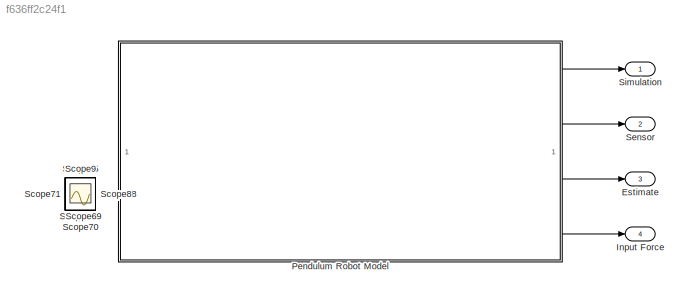
MODEL slx_f636ff2c24f1
KIND model
CONFIG AbsTol = auto
CONFIG EnableMultiTasking = on
CONFIG FixedStep = Ts
CONFIG MaxStep = auto
CONFIG MinStep = auto
CONFIG RelTol = 1e-3
CONFIG SampleTimeConstraint = Unconstrained
CONFIG SolverName = FixedStepDiscrete
CONFIG StartTime = 0.0
CONFIG StopTime = 30
BLOCK [Outport] Estimate
  Port = 3
BLOCK [Outport] Input Force
  Port = 4
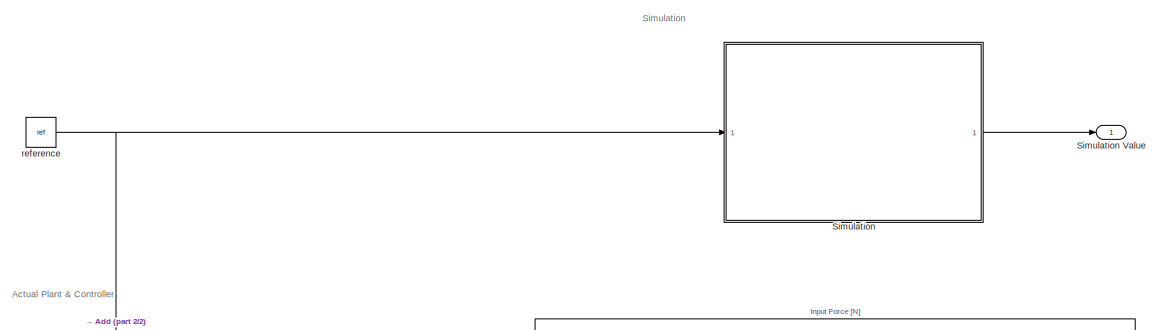
[diagram: Pendulum Robot Model - part 1/2, full width, top band]
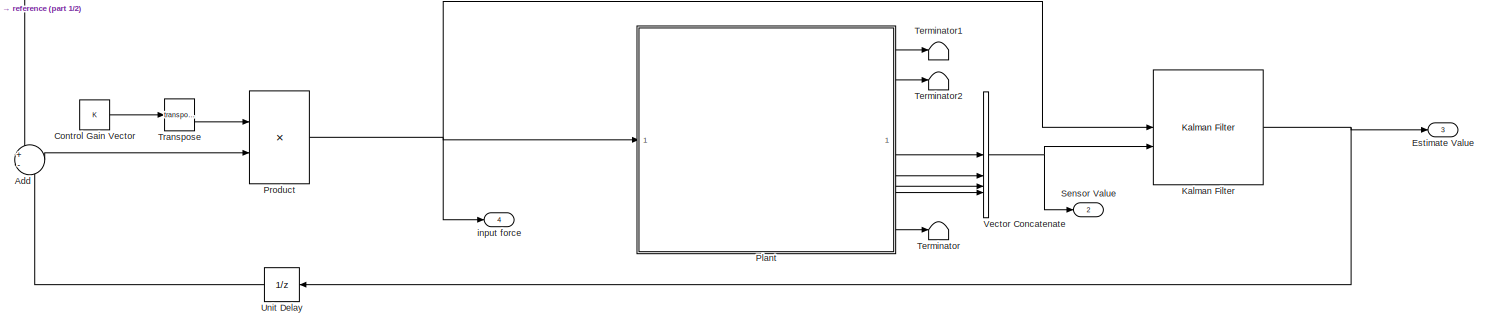
[diagram: Pendulum Robot Model - part 2/2, full width, bottom band]
BLOCK [SubSystem] Pendulum Robot Model
  InitFcn = [Ts, T_filt, r, ref, x0, A, B, C, D, K, P0, Q, R, N] = initializeRobot()
BLOCK [Sum] Pendulum Robot Model/Add
  Inputs = +-
BLOCK [Constant] Pendulum Robot Model/Control Gain Vector
  Value = K
BLOCK [Outport] Pendulum Robot Model/Estimate Value
  Port = 3
BLOCK [Reference] Pendulum Robot Model/Kalman Filter  REF=ctrlSharedLib/Kalman Filter
  LibrarySourceBlock = cstblocks/State Estimation/Kalman Filter
  SourceBlock = ctrlSharedLib/Kalman Filter
  SourceType = ctrlKalmanFilter
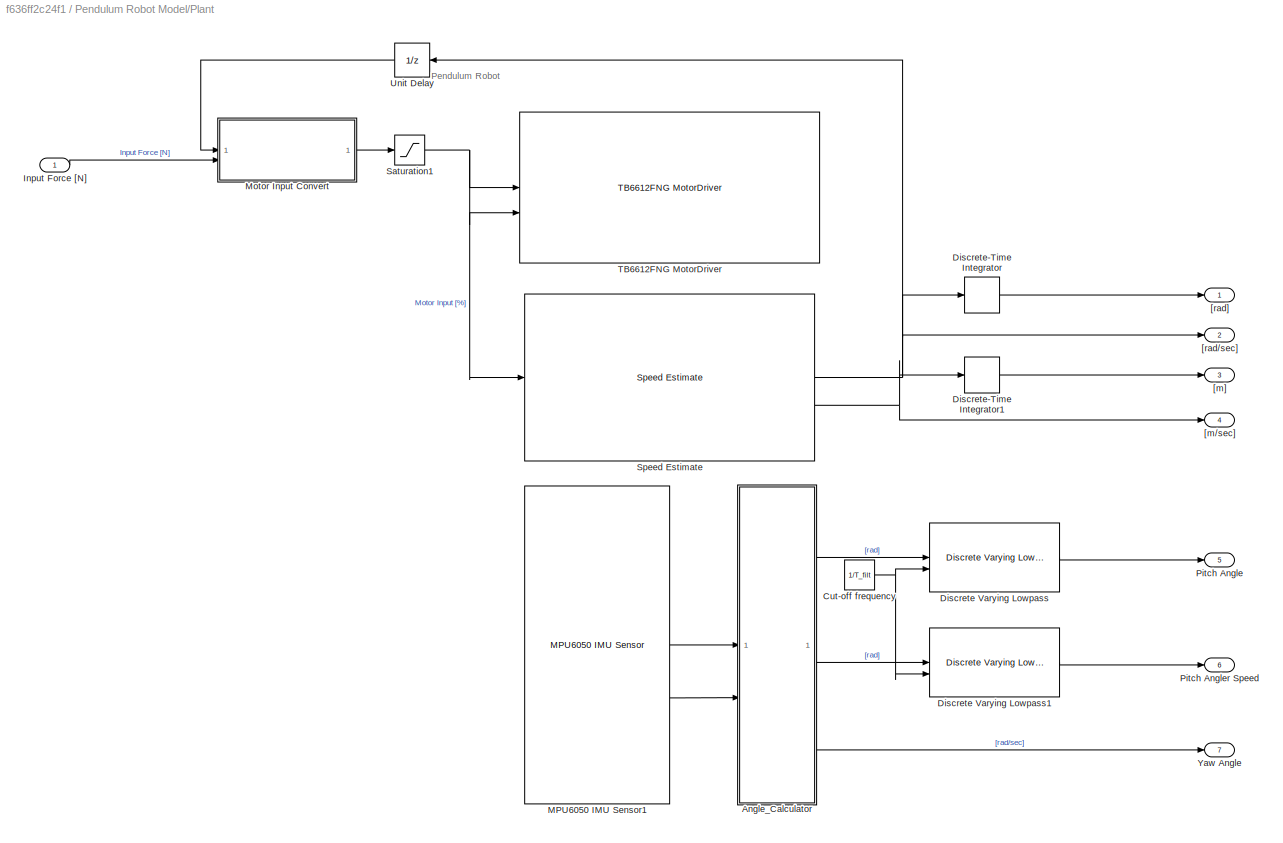
BLOCK [SubSystem] Pendulum Robot Model/Plant
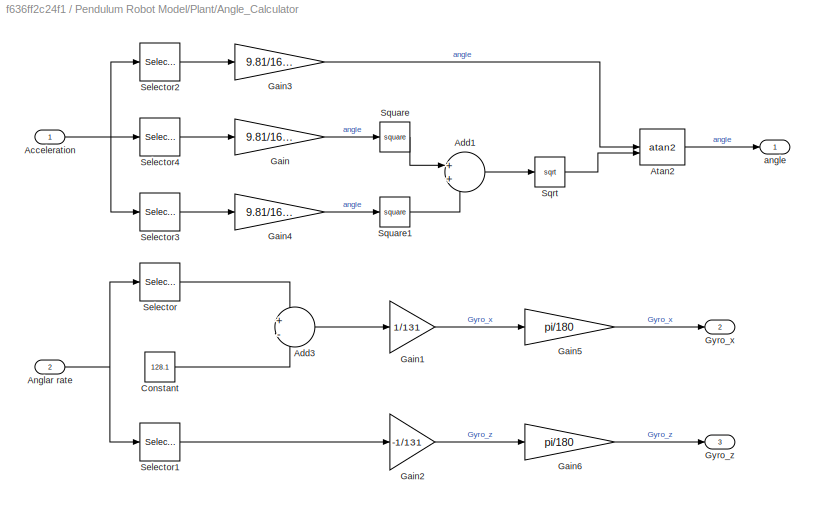
BLOCK [SubSystem] Pendulum Robot Model/Plant/Angle_Calculator
BLOCK [Inport] Pendulum Robot Model/Plant/Angle_Calculator/Acceleration
BLOCK [Sum] Pendulum Robot Model/Plant/Angle_Calculator/Add1
BLOCK [Sum] Pendulum Robot Model/Plant/Angle_Calculator/Add3
  Inputs = +-
BLOCK [Inport] Pendulum Robot Model/Plant/Angle_Calculator/Anglar rate
  Port = 2
BLOCK [Trigonometry] Pendulum Robot Model/Plant/Angle_Calculator/Atan2
  Operator = atan2
BLOCK [Constant] Pendulum Robot Model/Plant/Angle_Calculator/Constant
  Value = 128.1
BLOCK [Gain] Pendulum Robot Model/Plant/Angle_Calculator/Gain
  Gain = 9.81/16384
BLOCK [Gain] Pendulum Robot Model/Plant/Angle_Calculator/Gain1
  Gain = 1/131
BLOCK [Gain] Pendulum Robot Model/Plant/Angle_Calculator/Gain2
  Gain = -1/131
BLOCK [Gain] Pendulum Robot Model/Plant/Angle_Calculator/Gain3
  Gain = 9.81/16384
BLOCK [Gain] Pendulum Robot Model/Plant/Angle_Calculator/Gain4
  Gain = 9.81/16384
BLOCK [Gain] Pendulum Robot Model/Plant/Angle_Calculator/Gain5
  Gain = pi/180
BLOCK [Gain] Pendulum Robot Model/Plant/Angle_Calculator/Gain6
  Gain = pi/180
BLOCK [Outport] Pendulum Robot Model/Plant/Angle_Calculator/Gyro_x
  Port = 2
BLOCK [Outport] Pendulum Robot Model/Plant/Angle_Calculator/Gyro_z
  Port = 3
BLOCK [Selector] Pendulum Robot Model/Plant/Angle_Calculator/Selector
  IndexOptions = Index vector (dialog)
  Indices = [1]
  InputPortWidth = 3
  OutputSizes = 1
BLOCK [Selector] Pendulum Robot Model/Plant/Angle_Calculator/Selector1
  IndexOptions = Index vector (dialog)
  Indices = [3]
  InputPortWidth = 3
  OutputSizes = 1
BLOCK [Selector] Pendulum Robot Model/Plant/Angle_Calculator/Selector2
  IndexOptions = Index vector (dialog)
  Indices = [2]
  InputPortWidth = 3
  OutputSizes = 1
BLOCK [Selector] Pendulum Robot Model/Plant/Angle_Calculator/Selector3
  IndexOptions = Index vector (dialog)
  Indices = [3]
  InputPortWidth = 3
  OutputSizes = 1
BLOCK [Selector] Pendulum Robot Model/Plant/Angle_Calculator/Selector4
  IndexOptions = Index vector (dialog)
  Indices = [1]
  InputPortWidth = 3
  OutputSizes = 1
BLOCK [Sqrt] Pendulum Robot Model/Plant/Angle_Calculator/Sqrt
BLOCK [Math] Pendulum Robot Model/Plant/Angle_Calculator/Square
  Operator = square
BLOCK [Math] Pendulum Robot Model/Plant/Angle_Calculator/Square1
  Operator = square
BLOCK [Outport] Pendulum Robot Model/Plant/Angle_Calculator/angle
BLOCK [Constant] Pendulum Robot Model/Plant/Cut-off frequency
  Value = 1/T_filt
BLOCK [Reference] Pendulum Robot Model/Plant/Discrete Varying Lowpass  REF=cstblocks/Linear Parameter Varying/Discrete Varying Lowpass
  SourceBlock = cstblocks/Linear Parameter Varying/Discrete Varying Lowpass
  SourceType = Discrete Varying Lowpass
BLOCK [Reference] Pendulum Robot Model/Plant/Discrete Varying Lowpass1  REF=cstblocks/Linear Parameter Varying/Discrete Varying Lowpass
  SourceBlock = cstblocks/Linear Parameter Varying/Discrete Varying Lowpass
  SourceType = Discrete Varying Lowpass
BLOCK [DiscreteIntegrator] Pendulum Robot Model/Plant/Discrete-Time Integrator
  ICPrevOutput = DiscIntNeverNeededParam
  ICPrevScaledInput = DiscIntNeverNeededParam
  InitialConditionSetting = Auto
  SampleTime = -1
BLOCK [DiscreteIntegrator] Pendulum Robot Model/Plant/Discrete-Time Integrator1
  ICPrevOutput = DiscIntNeverNeededParam
  ICPrevScaledInput = DiscIntNeverNeededParam
  InitialConditionSetting = Auto
  SampleTime = -1
BLOCK [Inport] Pendulum Robot Model/Plant/Input Force [N]
BLOCK [Reference] Pendulum Robot Model/Plant/MPU6050 IMU Sensor1  REF=arduinosensorlib/MPU6050 IMU Sensor
  SourceBlock = arduinosensorlib/MPU6050 IMU Sensor
  SourceType = MPU6050
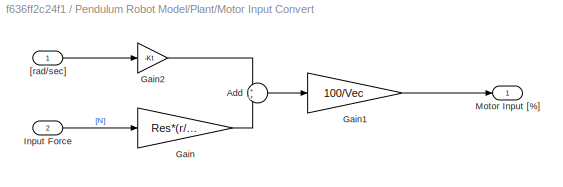
BLOCK [SubSystem] Pendulum Robot Model/Plant/Motor Input Convert
BLOCK [Sum] Pendulum Robot Model/Plant/Motor Input Convert/Add
BLOCK [Gain] Pendulum Robot Model/Plant/Motor Input Convert/Gain
  Gain = Res*(r/Kt)
BLOCK [Gain] Pendulum Robot Model/Plant/Motor Input Convert/Gain1
  Gain = 100/Vec
BLOCK [Gain] Pendulum Robot Model/Plant/Motor Input Convert/Gain2
  Gain = -Kt
BLOCK [Inport] Pendulum Robot Model/Plant/Motor Input Convert/Input Force
  Port = 2
BLOCK [Outport] Pendulum Robot Model/Plant/Motor Input Convert/Motor Input [%]
BLOCK [Inport] Pendulum Robot Model/Plant/Motor Input Convert/[rad//sec]
BLOCK [Outport] Pendulum Robot Model/Plant/Pitch Angle
  Port = 5
BLOCK [Outport] Pendulum Robot Model/Plant/Pitch Angler Speed
  Port = 6
BLOCK [Saturate] Pendulum Robot Model/Plant/Saturation1
  LowerLimit = -100
  UpperLimit = 100
BLOCK [Reference] Pendulum Robot Model/Plant/Speed Estimate  REF=SpeedEstimater/Speed Estimate
  SourceBlock = SpeedEstimater/Speed Estimate
BLOCK [Reference] Pendulum Robot Model/Plant/TB6612FNG MotorDriver  REF=TB6612FNG/TB6612FNG MotorDriver
  SourceBlock = TB6612FNG/TB6612FNG MotorDriver
BLOCK [UnitDelay] Pendulum Robot Model/Plant/Unit Delay
  HasFrameUpgradeWarning = on
  SampleTime = -1
BLOCK [Outport] Pendulum Robot Model/Plant/Yaw Angle
  Port = 7
BLOCK [Outport] Pendulum Robot Model/Plant/[m//sec]
  Port = 4
BLOCK [Outport] Pendulum Robot Model/Plant/[m]
  Port = 3
BLOCK [Outport] Pendulum Robot Model/Plant/[rad//sec]
  Port = 2
BLOCK [Outport] Pendulum Robot Model/Plant/[rad]
BLOCK [Product] Pendulum Robot Model/Product
  Multiplication = Matrix(*)
BLOCK [Outport] Pendulum Robot Model/Sensor Value
  Port = 2
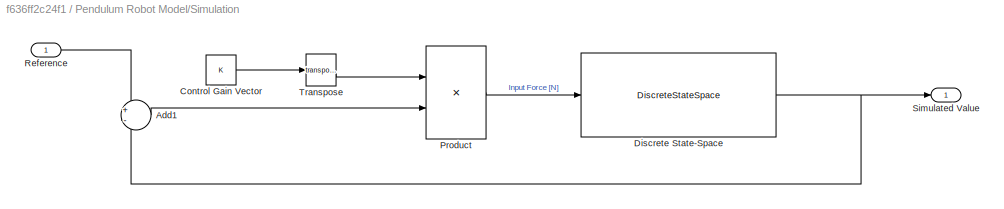
BLOCK [SubSystem] Pendulum Robot Model/Simulation
  Commented = on
BLOCK [Outport] Pendulum Robot Model/Simulation Value
BLOCK [Sum] Pendulum Robot Model/Simulation/Add1
  Inputs = +-
BLOCK [Constant] Pendulum Robot Model/Simulation/Control Gain Vector
  Value = K
BLOCK [DiscreteStateSpace] Pendulum Robot Model/Simulation/Discrete State-Space
  A = A
  B = B
  C = C
  D = D
  InitialCondition = x0
  SampleTime = -1
BLOCK [Product] Pendulum Robot Model/Simulation/Product
  Multiplication = Matrix(*)
BLOCK [Inport] Pendulum Robot Model/Simulation/Reference
BLOCK [Outport] Pendulum Robot Model/Simulation/Simulated Value
BLOCK [Math] Pendulum Robot Model/Simulation/Transpose
  Operator = transpose
BLOCK [Terminator] Pendulum Robot Model/Terminator
BLOCK [Terminator] Pendulum Robot Model/Terminator1
BLOCK [Terminator] Pendulum Robot Model/Terminator2
BLOCK [Math] Pendulum Robot Model/Transpose
  Operator = transpose
BLOCK [UnitDelay] Pendulum Robot Model/Unit Delay
  HasFrameUpgradeWarning = on
  SampleTime = -1
BLOCK [Concatenate] Pendulum Robot Model/Vector Concatenate
  NumInputs = 4
BLOCK [Outport] Pendulum Robot Model/input force
  Port = 4
BLOCK [Constant] Pendulum Robot Model/reference
  SampleTime = Ts
  Value = ref
BLOCK [Scope] Scope
  Floating = off
  IOType = viewer
  NumInputPorts = 1
  ScopeSpecificationString = Simulink.scopes.TimeScopeBlockCfg('CurrentConfiguration', extmgr.ConfigurationSet(extmgr.Configuration('Core','General UI',true),extmgr.Configuration('Core','Source UI',true),extmgr.Configuration('Sources','WiredSimulink',true),extmgr.Configuration('Visuals','Time Domain',true,'SerializedDisplays',{struct('MinYLimReal','-1.00000','MaxYLimReal','1.00000','YLabelReal','','MinYLimMag','0.00000','MaxY...<+1348ch>
BLOCK [Scope] Scope1
  Floating = off
  IOType = viewer
  NumInputPorts = 1
  ScopeSpecificationString = Simulink.scopes.TimeScopeBlockCfg('CurrentConfiguration', extmgr.ConfigurationSet(extmgr.Configuration('Core','General UI',true),extmgr.Configuration('Core','Source UI',true),extmgr.Configuration('Sources','WiredSimulink',true,'DataLoggingVariableName','ScopeData1'),extmgr.Configuration('Visuals','Time Domain',true,'SerializedDisplays',{struct('MinYLimReal','-1.00000','MaxYLimReal','1.00000','YLab...<+1357ch>
BLOCK [Scope] Scope10
  Floating = off
  IOType = viewer
  NumInputPorts = 1
  ScopeSpecificationString = Simulink.scopes.TimeScopeBlockCfg('CurrentConfiguration', extmgr.ConfigurationSet(extmgr.Configuration('Core','General UI',true),extmgr.Configuration('Core','Source UI',true),extmgr.Configuration('Sources','WiredSimulink',true,'DataLoggingVariableName','ScopeData5'),extmgr.Configuration('Visuals','Time Domain',true,'SerializedDisplays',{struct('MinYLimReal','-336.66665','MaxYLimReal','39.51432','Y...<+1371ch>
BLOCK [Scope] Scope11
  Floating = off
  IOType = viewer
  NumInputPorts = 1
  ScopeSpecificationString = Simulink.scopes.TimeScopeBlockCfg('CurrentConfiguration', extmgr.ConfigurationSet(extmgr.Configuration('Core','General UI',true),extmgr.Configuration('Core','Source UI',true),extmgr.Configuration('Sources','WiredSimulink',true,'DataLoggingVariableName','ScopeData6'),extmgr.Configuration('Visuals','Time Domain',true,'SerializedDisplays',{struct('MinYLimReal','-3750.00000','MaxYLimReal','3750.00000'...<+1381ch>
BLOCK [Scope] Scope12
  Floating = off
  IOType = viewer
  NumInputPorts = 1
  ScopeSpecificationString = Simulink.scopes.TimeScopeBlockCfg('CurrentConfiguration', extmgr.ConfigurationSet(extmgr.Configuration('Core','General UI',true),extmgr.Configuration('Core','Source UI',true),extmgr.Configuration('Sources','WiredSimulink',true,'DataLoggingVariableName','ScopeData1'),extmgr.Configuration('Visuals','Time Domain',true,'SerializedDisplays',{struct('MinYLimReal','8.96259','MaxYLimReal','12.49535','YLab...<+1380ch>
BLOCK [Scope] Scope13
  Floating = off
  IOType = viewer
  NumInputPorts = 1
  ScopeSpecificationString = Simulink.scopes.TimeScopeBlockCfg('CurrentConfiguration', extmgr.ConfigurationSet(extmgr.Configuration('Core','General UI',true),extmgr.Configuration('Core','Source UI',true),extmgr.Configuration('Sources','WiredSimulink',true,'DataLoggingVariableName','ScopeData2'),extmgr.Configuration('Visuals','Time Domain',true,'SerializedDisplays',{struct('MinYLimReal','-0.0534','MaxYLimReal','0.0534','YLabel...<+1401ch>
BLOCK [Scope] Scope14
  Floating = off
  IOType = viewer
  NumInputPorts = 1
  ScopeSpecificationString = Simulink.scopes.TimeScopeBlockCfg('CurrentConfiguration', extmgr.ConfigurationSet(extmgr.Configuration('Core','General UI',true),extmgr.Configuration('Core','Source UI',true),extmgr.Configuration('Sources','WiredSimulink',true,'DataLoggingVariableName','ScopeData3'),extmgr.Configuration('Visuals','Time Domain',true,'SerializedDisplays',{struct('MinYLimReal','-1.19104','MaxYLimReal','0.26175','YLab...<+1430ch>
BLOCK [Scope] Scope15
  Floating = off
  IOType = viewer
  NumInputPorts = 1
  ScopeSpecificationString = Simulink.scopes.TimeScopeBlockCfg('CurrentConfiguration', extmgr.ConfigurationSet(extmgr.Configuration('Core','General UI',true),extmgr.Configuration('Core','Source UI',true),extmgr.Configuration('Sources','WiredSimulink',true,'DataLoggingVariableName','ScopeData1'),extmgr.Configuration('Visuals','Time Domain',true,'SerializedDisplays',{struct('MinYLimReal','462.59457','MaxYLimReal','775.70875','Y...<+1492ch>
BLOCK [Scope] Scope16
  Floating = off
  IOType = viewer
  NumInputPorts = 1
  ScopeSpecificationString = Simulink.scopes.TimeScopeBlockCfg('CurrentConfiguration', extmgr.ConfigurationSet(extmgr.Configuration('Core','General UI',true),extmgr.Configuration('Core','Source UI',true),extmgr.Configuration('Sources','WiredSimulink',true,'DataLoggingVariableName','ScopeData2'),extmgr.Configuration('Visuals','Time Domain',true,'SerializedDisplays',{struct('MinYLimReal','-125.00000','MaxYLimReal','125.00000','...<+1373ch>
BLOCK [Scope] Scope17
  Floating = off
  IOType = viewer
  NumInputPorts = 1
  ScopeSpecificationString = Simulink.scopes.TimeScopeBlockCfg('CurrentConfiguration', extmgr.ConfigurationSet(extmgr.Configuration('Core','General UI',true),extmgr.Configuration('Core','Source UI',true),extmgr.Configuration('Sources','WiredSimulink',true,'DataLoggingVariableName','ScopeData3'),extmgr.Configuration('Visuals','Time Domain',true,'SerializedDisplays',{struct('MinYLimReal','-116.88553','MaxYLimReal','-5.09201','Y...<+1371ch>
BLOCK [Scope] Scope18
  Floating = off
  IOType = viewer
  NumInputPorts = 1
  ScopeSpecificationString = Simulink.scopes.TimeScopeBlockCfg('CurrentConfiguration', extmgr.ConfigurationSet(extmgr.Configuration('Core','General UI',true),extmgr.Configuration('Core','Source UI',true),extmgr.Configuration('Sources','WiredSimulink',true,'DataLoggingVariableName','ScopeData5'),extmgr.Configuration('Visuals','Time Domain',true,'SerializedDisplays',{struct('MinYLimReal','-15.81951','MaxYLimReal','1.75772','YLa...<+1363ch>
BLOCK [Scope] Scope19
  Floating = off
  IOType = viewer
  NumInputPorts = 1
  ScopeSpecificationString = Simulink.scopes.TimeScopeBlockCfg('CurrentConfiguration', extmgr.ConfigurationSet(extmgr.Configuration('Core','General UI',true),extmgr.Configuration('Core','Source UI',true),extmgr.Configuration('Sources','WiredSimulink',true,'DataLoggingVariableName','ScopeData6'),extmgr.Configuration('Visuals','Time Domain',true,'SerializedDisplays',{struct('MinYLimReal','-10.43151','MaxYLimReal','1.15906','YLa...<+1363ch>
BLOCK [Scope] Scope2
  Floating = off
  IOType = viewer
  NumInputPorts = 1
  ScopeSpecificationString = Simulink.scopes.TimeScopeBlockCfg('CurrentConfiguration', extmgr.ConfigurationSet(extmgr.Configuration('Core','General UI',true),extmgr.Configuration('Core','Source UI',true),extmgr.Configuration('Sources','WiredSimulink',true,'DataLoggingVariableName','ScopeData2'),extmgr.Configuration('Visuals','Time Domain',true,'SerializedDisplays',{struct('MinYLimReal','-10.43618','MaxYLimReal','10.27217','YL...<+1365ch>
BLOCK [Scope] Scope20
  Floating = off
  IOType = viewer
  NumInputPorts = 1
  ScopeSpecificationString = Simulink.scopes.TimeScopeBlockCfg('CurrentConfiguration', extmgr.ConfigurationSet(extmgr.Configuration('Core','General UI',true),extmgr.Configuration('Core','Source UI',true),extmgr.Configuration('Sources','WiredSimulink',true,'DataLoggingVariableName','ScopeData7'),extmgr.Configuration('Visuals','Time Domain',true,'SerializedDisplays',{struct('MinYLimReal','-2.19165','MaxYLimReal','19.72486','YLa...<+1363ch>
BLOCK [Scope] Scope21
  Floating = off
  IOType = viewer
  NumInputPorts = 1
  ScopeSpecificationString = Simulink.scopes.TimeScopeBlockCfg('CurrentConfiguration', extmgr.ConfigurationSet(extmgr.Configuration('Core','General UI',true),extmgr.Configuration('Core','Source UI',true),extmgr.Configuration('Sources','WiredSimulink',true,'DataLoggingVariableName','ScopeData2'),extmgr.Configuration('Visuals','Time Domain',true,'SerializedDisplays',{struct('MinYLimReal','-0.125','MaxYLimReal','1.125','YLabelRe...<+1347ch>
BLOCK [Scope] Scope22
  Floating = off
  IOType = viewer
  NumInputPorts = 1
  ScopeSpecificationString = Simulink.scopes.TimeScopeBlockCfg('CurrentConfiguration', extmgr.ConfigurationSet(extmgr.Configuration('Core','General UI',true),extmgr.Configuration('Core','Source UI',true),extmgr.Configuration('Sources','WiredSimulink',true,'DataLoggingVariableName','ScopeData3'),extmgr.Configuration('Visuals','Time Domain',true,'SerializedDisplays',{struct('MinYLimReal','0.82479','MaxYLimReal','1.00429','YLabe...<+1403ch>
BLOCK [Scope] Scope23
  Floating = off
  IOType = viewer
  NumInputPorts = 1
  ScopeSpecificationString = Simulink.scopes.TimeScopeBlockCfg('CurrentConfiguration', extmgr.ConfigurationSet(extmgr.Configuration('Core','General UI',true),extmgr.Configuration('Core','Source UI',true),extmgr.Configuration('Sources','WiredSimulink',true,'DataLoggingVariableName','ScopeData4'),extmgr.Configuration('Visuals','Time Domain',true,'SerializedDisplays',{struct('MinYLimReal','-3.01562','MaxYLimReal','27.14062','YLa...<+1363ch>
BLOCK [Scope] Scope24
  Floating = off
  IOType = viewer
  NumInputPorts = 1
  ScopeSpecificationString = Simulink.scopes.TimeScopeBlockCfg('CurrentConfiguration', extmgr.ConfigurationSet(extmgr.Configuration('Core','General UI',true),extmgr.Configuration('Core','Source UI',true),extmgr.Configuration('Sources','WiredSimulink',true,'DataLoggingVariableName','ScopeData5'),extmgr.Configuration('Visuals','Time Domain',true,'SerializedDisplays',{struct('MinYLimReal','-10.00000','MaxYLimReal','10.00000','YL...<+1365ch>
BLOCK [Scope] Scope25
  Floating = off
  IOType = viewer
  NumInputPorts = 1
  ScopeSpecificationString = Simulink.scopes.TimeScopeBlockCfg('CurrentConfiguration', extmgr.ConfigurationSet(extmgr.Configuration('Core','General UI',true),extmgr.Configuration('Core','Source UI',true),extmgr.Configuration('Sources','WiredSimulink',true,'DataLoggingVariableName','ScopeData3'),extmgr.Configuration('Visuals','Time Domain',true,'SerializedDisplays',{struct('MinYLimReal','-0.28846','MaxYLimReal','25.67308','YLa...<+1363ch>
BLOCK [Scope] Scope26
  Floating = off
  IOType = viewer
  NumInputPorts = 1
  ScopeSpecificationString = Simulink.scopes.TimeScopeBlockCfg('CurrentConfiguration', extmgr.ConfigurationSet(extmgr.Configuration('Core','General UI',true),extmgr.Configuration('Core','Source UI',true),extmgr.Configuration('Sources','WiredSimulink',true,'DataLoggingVariableName','ScopeData4'),extmgr.Configuration('Visuals','Time Domain',true,'SerializedDisplays',{struct('MinYLimReal','-0.57692','MaxYLimReal','51.34615','YLa...<+1363ch>
BLOCK [Scope] Scope27
  Floating = off
  IOType = viewer
  NumInputPorts = 1
  ScopeSpecificationString = Simulink.scopes.TimeScopeBlockCfg('CurrentConfiguration', extmgr.ConfigurationSet(extmgr.Configuration('Core','General UI',true),extmgr.Configuration('Core','Source UI',true),extmgr.Configuration('Sources','WiredSimulink',true,'DataLoggingVariableName','ScopeData10'),extmgr.Configuration('Visuals','Time Domain',true,'SerializedDisplays',{struct('MinYLimReal','-0.30987','MaxYLimReal','2.96701','YLa...<+1360ch>
BLOCK [Scope] Scope28
  Floating = off
  IOType = viewer
  NumInputPorts = 1
  ScopeSpecificationString = Simulink.scopes.TimeScopeBlockCfg('CurrentConfiguration', extmgr.ConfigurationSet(extmgr.Configuration('Core','General UI',true),extmgr.Configuration('Core','Source UI',true),extmgr.Configuration('Sources','WiredSimulink',true,'DataLoggingVariableName','ScopeData1'),extmgr.Configuration('Visuals','Time Domain',true,'SerializedDisplays',{struct('MinYLimReal','-2890.5','MaxYLimReal','26484.5','YLabe...<+1390ch>
BLOCK [Scope] Scope29
  Floating = off
  IOType = viewer
  NumInputPorts = 1
  ScopeSpecificationString = Simulink.scopes.TimeScopeBlockCfg('CurrentConfiguration', extmgr.ConfigurationSet(extmgr.Configuration('Core','General UI',true),extmgr.Configuration('Core','Source UI',true),extmgr.Configuration('Sources','WiredSimulink',true,'DataLoggingVariableName','ScopeData2'),extmgr.Configuration('Visuals','Time Domain',true,'SerializedDisplays',{struct('MinYLimReal','-5.875','MaxYLimReal','522.875','YLabel...<+1355ch>
BLOCK [Scope] Scope3
  Floating = off
  IOType = viewer
  NumInputPorts = 1
  ScopeSpecificationString = Simulink.scopes.TimeScopeBlockCfg('CurrentConfiguration', extmgr.ConfigurationSet(extmgr.Configuration('Core','General UI',true),extmgr.Configuration('Core','Source UI',true),extmgr.Configuration('Sources','WiredSimulink',true,'DataLoggingVariableName','ScopeData3'),extmgr.Configuration('Visuals','Time Domain',true,'SerializedDisplays',{struct('MinYLimReal','-1.00000','MaxYLimReal','1.00000','YLab...<+1359ch>
BLOCK [Scope] Scope30
  Floating = off
  IOType = viewer
  NumInputPorts = 1
  ScopeSpecificationString = Simulink.scopes.TimeScopeBlockCfg('CurrentConfiguration', extmgr.ConfigurationSet(extmgr.Configuration('Core','General UI',true),extmgr.Configuration('Core','Source UI',true),extmgr.Configuration('Sources','WiredSimulink',true,'DataLoggingVariableName','ScopeData3'),extmgr.Configuration('Visuals','Time Domain',true,'SerializedDisplays',{struct('MinYLimReal','37.00000','MaxYLimReal','57.00000','YLa...<+1395ch>
BLOCK [Scope] Scope31
  Floating = off
  IOType = viewer
  NumInputPorts = 1
  ScopeSpecificationString = Simulink.scopes.TimeScopeBlockCfg('CurrentConfiguration', extmgr.ConfigurationSet(extmgr.Configuration('Core','General UI',true),extmgr.Configuration('Core','Source UI',true),extmgr.Configuration('Sources','WiredSimulink',true,'DataLoggingVariableName','ScopeData4'),extmgr.Configuration('Visuals','Time Domain',true,'SerializedDisplays',{struct('MinYLimReal','-0.125','MaxYLimReal','1.125','YLabelRe...<+1393ch>
BLOCK [Scope] Scope32
  Floating = off
  IOType = viewer
  NumInputPorts = 1
  ScopeSpecificationString = Simulink.scopes.TimeScopeBlockCfg('CurrentConfiguration', extmgr.ConfigurationSet(extmgr.Configuration('Core','General UI',true),extmgr.Configuration('Core','Source UI',true),extmgr.Configuration('Sources','WiredSimulink',true,'DataLoggingVariableName','ScopeData5'),extmgr.Configuration('Visuals','Time Domain',true,'SerializedDisplays',{struct('MinYLimReal','83.00000','MaxYLimReal','103.00000','YL...<+1396ch>
BLOCK [Scope] Scope33
  Floating = off
  IOType = viewer
  NumInputPorts = 1
  ScopeSpecificationString = Simulink.scopes.TimeScopeBlockCfg('CurrentConfiguration', extmgr.ConfigurationSet(extmgr.Configuration('Core','General UI',true),extmgr.Configuration('Core','Source UI',true),extmgr.Configuration('Sources','WiredSimulink',true,'DataLoggingVariableName','ScopeData6'),extmgr.Configuration('Visuals','Time Domain',true,'SerializedDisplays',{struct('MinYLimReal','329.23077','MaxYLimReal','529.23077','Y...<+1373ch>
BLOCK [Scope] Scope34
  Floating = off
  IOType = viewer
  NumInputPorts = 1
  ScopeSpecificationString = Simulink.scopes.TimeScopeBlockCfg('CurrentConfiguration', extmgr.ConfigurationSet(extmgr.Configuration('Core','General UI',true),extmgr.Configuration('Core','Source UI',true),extmgr.Configuration('Sources','WiredSimulink',true,'DataLoggingVariableName','ScopeData7'),extmgr.Configuration('Visuals','Time Domain',true,'SerializedDisplays',{struct('MinYLimReal','-0.03053','MaxYLimReal','0.01088','YLab...<+1386ch>
BLOCK [Scope] Scope35
  Floating = off
  IOType = viewer
  NumInputPorts = 1
  ScopeSpecificationString = Simulink.scopes.TimeScopeBlockCfg('CurrentConfiguration', extmgr.ConfigurationSet(extmgr.Configuration('Core','General UI',true),extmgr.Configuration('Core','Source UI',true),extmgr.Configuration('Sources','WiredSimulink',true,'DataLoggingVariableName','ScopeData8'),extmgr.Configuration('Visuals','Time Domain',true,'SerializedDisplays',{struct('MinYLimReal','-54.67116','MaxYLimReal','19.47246','YL...<+1392ch>
BLOCK [Scope] Scope36
  Floating = off
  IOType = viewer
  NumInputPorts = 1
  ScopeSpecificationString = Simulink.scopes.TimeScopeBlockCfg('CurrentConfiguration', extmgr.ConfigurationSet(extmgr.Configuration('Core','General UI',true),extmgr.Configuration('Core','Source UI',true),extmgr.Configuration('Sources','WiredSimulink',true,'DataLoggingVariableName','ScopeData9'),extmgr.Configuration('Visuals','Time Domain',true,'SerializedDisplays',{struct('MinYLimReal','-54.67116','MaxYLimReal','19.47246','YL...<+1365ch>
BLOCK [Scope] Scope37
  Floating = off
  IOType = viewer
  NumInputPorts = 1
  ScopeSpecificationString = Simulink.scopes.TimeScopeBlockCfg('CurrentConfiguration', extmgr.ConfigurationSet(extmgr.Configuration('Core','General UI',true),extmgr.Configuration('Core','Source UI',true),extmgr.Configuration('Sources','WiredSimulink',true,'DataLoggingVariableName','ScopeData2'),extmgr.Configuration('Visuals','Time Domain',true,'SerializedDisplays',{struct('MinYLimReal','0.9','MaxYLimReal','1.1','YLabelReal','...<+1354ch>
BLOCK [Scope] Scope38
  Floating = off
  IOType = viewer
  NumInputPorts = 1
  ScopeSpecificationString = Simulink.scopes.TimeScopeBlockCfg('CurrentConfiguration', extmgr.ConfigurationSet(extmgr.Configuration('Core','General UI',true),extmgr.Configuration('Core','Source UI',true),extmgr.Configuration('Sources','WiredSimulink',true,'DataLoggingVariableName','ScopeData5'),extmgr.Configuration('Visuals','Time Domain',true,'SerializedDisplays',{struct('MinYLimReal','37.74023','MaxYLimReal','335.5889','YLa...<+1390ch>
BLOCK [Scope] Scope39
  Floating = off
  IOType = viewer
  NumInputPorts = 1
  ScopeSpecificationString = Simulink.scopes.TimeScopeBlockCfg('CurrentConfiguration', extmgr.ConfigurationSet(extmgr.Configuration('Core','General UI',true),extmgr.Configuration('Core','Source UI',true),extmgr.Configuration('Sources','WiredSimulink',true,'DataLoggingVariableName','ScopeData2'),extmgr.Configuration('Visuals','Time Domain',true,'SerializedDisplays',{struct('MinYLimReal','-0.03159','MaxYLimReal','0.04107','YLab...<+1585ch>
BLOCK [Scope] Scope4
  Floating = off
  IOType = viewer
  NumInputPorts = 1
  ScopeSpecificationString = Simulink.scopes.TimeScopeBlockCfg('CurrentConfiguration', extmgr.ConfigurationSet(extmgr.Configuration('Core','General UI',true),extmgr.Configuration('Core','Source UI',true),extmgr.Configuration('Sources','WiredSimulink',true,'DataLoggingVariableName','ScopeData5'),extmgr.Configuration('Visuals','Time Domain',true,'SerializedDisplays',{struct('MinYLimReal','-0.4078','MaxYLimReal','-0.2078','YLabe...<+1407ch>
BLOCK [Scope] Scope40
  Floating = off
  IOType = viewer
  NumInputPorts = 1
  ScopeSpecificationString = Simulink.scopes.TimeScopeBlockCfg('CurrentConfiguration', extmgr.ConfigurationSet(extmgr.Configuration('Core','General UI',true),extmgr.Configuration('Core','Source UI',true),extmgr.Configuration('Sources','WiredSimulink',true,'DataLoggingVariableName','ScopeData3'),extmgr.Configuration('Visuals','Time Domain',true,'SerializedDisplays',{struct('MinYLimReal','-0.46263','MaxYLimReal','0.41375','YLab...<+1615ch>
BLOCK [Scope] Scope41
  Floating = off
  IOType = viewer
  NumInputPorts = 1
  ScopeSpecificationString = Simulink.scopes.TimeScopeBlockCfg('CurrentConfiguration', extmgr.ConfigurationSet(extmgr.Configuration('Core','General UI',true),extmgr.Configuration('Core','Source UI',true),extmgr.Configuration('Sources','WiredSimulink',true,'DataLoggingVariableName','ScopeData4'),extmgr.Configuration('Visuals','Time Domain',true,'SerializedDisplays',{struct('MinYLimReal','-0.1569','MaxYLimReal','0.33022','YLabe...<+1520ch>
BLOCK [Scope] Scope42
  Floating = off
  IOType = viewer
  NumInputPorts = 1
  ScopeSpecificationString = Simulink.scopes.TimeScopeBlockCfg('CurrentConfiguration', extmgr.ConfigurationSet(extmgr.Configuration('Core','General UI',true),extmgr.Configuration('Core','Source UI',true),extmgr.Configuration('Sources','WiredSimulink',true,'DataLoggingVariableName','ScopeData8'),extmgr.Configuration('Visuals','Time Domain',true,'SerializedDisplays',{struct('MinYLimReal','-1.00557','MaxYLimReal','5.66729','YLab...<+1359ch>
BLOCK [Scope] Scope43
  Floating = off
  IOType = viewer
  NumInputPorts = 1
  ScopeSpecificationString = Simulink.scopes.TimeScopeBlockCfg('CurrentConfiguration', extmgr.ConfigurationSet(extmgr.Configuration('Core','General UI',true),extmgr.Configuration('Core','Source UI',true),extmgr.Configuration('Sources','WiredSimulink',true,'DataLoggingVariableName','ScopeData10'),extmgr.Configuration('Visuals','Time Domain',true,'SerializedDisplays',{struct('MinYLimReal','-0.42623','MaxYLimReal','0.37059','YLa...<+1400ch>
BLOCK [Scope] Scope44
  Floating = off
  IOType = viewer
  NumInputPorts = 1
  ScopeSpecificationString = Simulink.scopes.TimeScopeBlockCfg('CurrentConfiguration', extmgr.ConfigurationSet(extmgr.Configuration('Core','General UI',true),extmgr.Configuration('Core','Source UI',true),extmgr.Configuration('Sources','WiredSimulink',true,'DataLoggingVariableName','ScopeData4'),extmgr.Configuration('Visuals','Time Domain',true,'SerializedDisplays',{struct('MinYLimReal','-13077683237804603171361717171926327067...<+2267ch>
BLOCK [Scope] Scope45
  Floating = off
  IOType = viewer
  NumInputPorts = 1
  ScopeSpecificationString = Simulink.scopes.TimeScopeBlockCfg('CurrentConfiguration', extmgr.ConfigurationSet(extmgr.Configuration('Core','General UI',true),extmgr.Configuration('Core','Source UI',true),extmgr.Configuration('Sources','WiredSimulink',true,'DataLoggingVariableName','ScopeData12'),extmgr.Configuration('Visuals','Time Domain',true,'SerializedDisplays',{struct('MinYLimReal','-125.00000','MaxYLimReal','125.00000',...<+1441ch>
BLOCK [Scope] Scope46
  Floating = off
  IOType = viewer
  NumInputPorts = 1
  ScopeSpecificationString = Simulink.scopes.TimeScopeBlockCfg('CurrentConfiguration', extmgr.ConfigurationSet(extmgr.Configuration('Core','General UI',true),extmgr.Configuration('Core','Source UI',true),extmgr.Configuration('Sources','WiredSimulink',true,'DataLoggingVariableName','ScopeData13'),extmgr.Configuration('Visuals','Time Domain',true,'SerializedDisplays',{struct('MinYLimReal','37.74023','MaxYLimReal','335.5889','YL...<+1366ch>
BLOCK [Scope] Scope47
  Floating = off
  IOType = viewer
  NumInputPorts = 1
  ScopeSpecificationString = Simulink.scopes.TimeScopeBlockCfg('CurrentConfiguration', extmgr.ConfigurationSet(extmgr.Configuration('Core','General UI',true),extmgr.Configuration('Core','Source UI',true),extmgr.Configuration('Sources','WiredSimulink',true,'DataLoggingVariableName','ScopeData14'),extmgr.Configuration('Visuals','Time Domain',true,'SerializedDisplays',{struct('MinYLimReal','3.6372','MaxYLimReal','12.9292','YLabe...<+1408ch>
BLOCK [Scope] Scope48
  Floating = off
  IOType = viewer
  NumInputPorts = 1
  ScopeSpecificationString = Simulink.scopes.TimeScopeBlockCfg('CurrentConfiguration', extmgr.ConfigurationSet(extmgr.Configuration('Core','General UI',true),extmgr.Configuration('Core','Source UI',true),extmgr.Configuration('Sources','WiredSimulink',true,'DataLoggingVariableName','ScopeData15'),extmgr.Configuration('Visuals','Time Domain',true,'SerializedDisplays',{struct('MinYLimReal','-23.11918','MaxYLimReal','5.08084','YL...<+1421ch>
BLOCK [Scope] Scope49
  Floating = off
  IOType = viewer
  NumInputPorts = 1
  ScopeSpecificationString = Simulink.scopes.TimeScopeBlockCfg('CurrentConfiguration', extmgr.ConfigurationSet(extmgr.Configuration('Core','General UI',true),extmgr.Configuration('Core','Source UI',true),extmgr.Configuration('Sources','WiredSimulink',true,'DataLoggingVariableName','ScopeData1'),extmgr.Configuration('Visuals','Time Domain',true,'SerializedDisplays',{struct('MinYLimReal','-462.38357','MaxYLimReal','101.61686','...<+1403ch>
BLOCK [Scope] Scope5
  Floating = off
  IOType = viewer
  NumInputPorts = 1
  ScopeSpecificationString = Simulink.scopes.TimeScopeBlockCfg('CurrentConfiguration', extmgr.ConfigurationSet(extmgr.Configuration('Core','General UI',true),extmgr.Configuration('Core','Source UI',true),extmgr.Configuration('Sources','WiredSimulink',true,'DataLoggingVariableName','ScopeData6'),extmgr.Configuration('Visuals','Time Domain',true,'SerializedDisplays',{struct('MinYLimReal','-0.03272','MaxYLimReal','0.29452','YLab...<+1413ch>
BLOCK [Scope] Scope50
  Floating = off
  IOType = viewer
  NumInputPorts = 1
  ScopeSpecificationString = Simulink.scopes.TimeScopeBlockCfg('CurrentConfiguration', extmgr.ConfigurationSet(extmgr.Configuration('Core','General UI',true),extmgr.Configuration('Core','Source UI',true),extmgr.Configuration('Sources','WiredSimulink',true,'DataLoggingVariableName','ScopeData5'),extmgr.Configuration('Visuals','Time Domain',true,'SerializedDisplays',{struct('MinYLimReal','-97572552019559798113232329478668443989...<+2273ch>
BLOCK [Scope] Scope51
  Floating = off
  IOType = viewer
  NumInputPorts = 1
  ScopeSpecificationString = Simulink.scopes.TimeScopeBlockCfg('CurrentConfiguration', extmgr.ConfigurationSet(extmgr.Configuration('Core','General UI',true),extmgr.Configuration('Core','Source UI',true),extmgr.Configuration('Sources','WiredSimulink',true,'DataLoggingVariableName','ScopeData1'),extmgr.Configuration('Visuals','Time Domain',true,'SerializedDisplays',{struct('MinYLimReal','-4.87066','MaxYLimReal','2.50097','YLab...<+1413ch>
BLOCK [Scope] Scope52
  Floating = off
  IOType = viewer
  NumInputPorts = 1
  ScopeSpecificationString = Simulink.scopes.TimeScopeBlockCfg('CurrentConfiguration', extmgr.ConfigurationSet(extmgr.Configuration('Core','General UI',true),extmgr.Configuration('Core','Source UI',true),extmgr.Configuration('Sources','WiredSimulink',true,'DataLoggingVariableName','ScopeData9'),extmgr.Configuration('Visuals','Time Domain',true,'SerializedDisplays',{struct('MinYLimReal','-0.59115','MaxYLimReal','5.32039','YLab...<+1359ch>
BLOCK [Scope] Scope53
  Floating = off
  IOType = viewer
  NumInputPorts = 1
  ScopeSpecificationString = Simulink.scopes.TimeScopeBlockCfg('CurrentConfiguration', extmgr.ConfigurationSet(extmgr.Configuration('Core','General UI',true),extmgr.Configuration('Core','Source UI',true),extmgr.Configuration('Sources','WiredSimulink',true,'DataLoggingVariableName','ScopeData1'),extmgr.Configuration('Visuals','Time Domain',true,'SerializedDisplays',{struct('MinYLimReal','-0.30978','MaxYLimReal','0.14785','YLab...<+1475ch>
BLOCK [Scope] Scope54
  Floating = off
  IOType = viewer
  NumInputPorts = 1
  ScopeSpecificationString = Simulink.scopes.TimeScopeBlockCfg('CurrentConfiguration', extmgr.ConfigurationSet(extmgr.Configuration('Core','General UI',true),extmgr.Configuration('Core','Source UI',true),extmgr.Configuration('Sources','WiredSimulink',true,'DataLoggingVariableName','ScopeData1'),extmgr.Configuration('Visuals','Time Domain',true,'SerializedDisplays',{struct('MinYLimReal','-1.13342','MaxYLimReal','0.60943','YLab...<+1546ch>
BLOCK [Scope] Scope55
  Floating = off
  IOType = viewer
  NumInputPorts = 1
  ScopeSpecificationString = Simulink.scopes.TimeScopeBlockCfg('CurrentConfiguration', extmgr.ConfigurationSet(extmgr.Configuration('Core','General UI',true),extmgr.Configuration('Core','Source UI',true),extmgr.Configuration('Sources','WiredSimulink',true,'DataLoggingVariableName','ScopeData1'),extmgr.Configuration('Visuals','Time Domain',true,'SerializedDisplays',{struct('MinYLimReal','-11.5087','MaxYLimReal','16.44236','YLa...<+1388ch>
BLOCK [Scope] Scope56
  Floating = off
  IOType = viewer
  NumInputPorts = 1
  ScopeSpecificationString = Simulink.scopes.TimeScopeBlockCfg('CurrentConfiguration', extmgr.ConfigurationSet(extmgr.Configuration('Core','General UI',true),extmgr.Configuration('Core','Source UI',true),extmgr.Configuration('Sources','WiredSimulink',true,'DataLoggingVariableName','ScopeData2'),extmgr.Configuration('Visuals','Time Domain',true,'SerializedDisplays',{struct('MinYLimReal','-2.01384','MaxYLimReal','2.01384','YLab...<+1384ch>
BLOCK [Scope] Scope57
  Floating = off
  IOType = viewer
  NumInputPorts = 1
  ScopeSpecificationString = Simulink.scopes.TimeScopeBlockCfg('CurrentConfiguration', extmgr.ConfigurationSet(extmgr.Configuration('Core','General UI',true),extmgr.Configuration('Core','Source UI',true),extmgr.Configuration('Sources','WiredSimulink',true,'DataLoggingVariableName','ScopeData3'),extmgr.Configuration('Visuals','Time Domain',true,'SerializedDisplays',{struct('MinYLimReal','-6.08306','MaxYLimReal','2.47149','YLab...<+1552ch>
BLOCK [Scope] Scope58
  Floating = off
  IOType = viewer
  NumInputPorts = 1
  ScopeSpecificationString = Simulink.scopes.TimeScopeBlockCfg('CurrentConfiguration', extmgr.ConfigurationSet(extmgr.Configuration('Core','General UI',true),extmgr.Configuration('Core','Source UI',true),extmgr.Configuration('Sources','WiredSimulink',true,'DataLoggingVariableName','ScopeData4'),extmgr.Configuration('Visuals','Time Domain',true,'SerializedDisplays',{struct('MinYLimReal','-3.71328','MaxYLimReal','-1.58364','YLa...<+1395ch>
BLOCK [Scope] Scope59
  Floating = off
  IOType = viewer
  NumInputPorts = 1
  ScopeSpecificationString = Simulink.scopes.TimeScopeBlockCfg('CurrentConfiguration', extmgr.ConfigurationSet(extmgr.Configuration('Core','General UI',true),extmgr.Configuration('Core','Source UI',true),extmgr.Configuration('Sources','WiredSimulink',true,'DataLoggingVariableName','ScopeData5'),extmgr.Configuration('Visuals','Time Domain',true,'SerializedDisplays',{struct('MinYLimReal','-10.00000','MaxYLimReal','10.00000','YL...<+1365ch>
BLOCK [Scope] Scope6
  Floating = off
  IOType = viewer
  NumInputPorts = 1
  ScopeSpecificationString = Simulink.scopes.TimeScopeBlockCfg('CurrentConfiguration', extmgr.ConfigurationSet(extmgr.Configuration('Core','General UI',true),extmgr.Configuration('Core','Source UI',true),extmgr.Configuration('Sources','WiredSimulink',true,'DataLoggingVariableName','ScopeData7'),extmgr.Configuration('Visuals','Time Domain',true,'SerializedDisplays',{struct('MinYLimReal','-0.76333','MaxYLimReal','0.74393','YLab...<+1359ch>
BLOCK [Scope] Scope60
  Floating = off
  IOType = viewer
  NumInputPorts = 1
  ScopeSpecificationString = Simulink.scopes.TimeScopeBlockCfg('CurrentConfiguration', extmgr.ConfigurationSet(extmgr.Configuration('Core','General UI',true),extmgr.Configuration('Core','Source UI',true),extmgr.Configuration('Sources','WiredSimulink',true,'DataLoggingVariableName','ScopeData6'),extmgr.Configuration('Visuals','Time Domain',true,'SerializedDisplays',{struct('MinYLimReal','-0.01994','MaxYLimReal','-0.01367','YLa...<+1366ch>
BLOCK [Scope] Scope61
  Floating = off
  IOType = viewer
  NumInputPorts = 1
  ScopeSpecificationString = Simulink.scopes.TimeScopeBlockCfg('CurrentConfiguration', extmgr.ConfigurationSet(extmgr.Configuration('Core','General UI',true),extmgr.Configuration('Core','Source UI',true),extmgr.Configuration('Sources','WiredSimulink',true,'DataLoggingVariableName','ScopeData7'),extmgr.Configuration('Visuals','Time Domain',true,'SerializedDisplays',{struct('MinYLimReal','-0.94596','MaxYLimReal','0.73544','YLab...<+1434ch>
BLOCK [Scope] Scope62
  Floating = off
  IOType = viewer
  NumInputPorts = 1
  ScopeSpecificationString = Simulink.scopes.TimeScopeBlockCfg('CurrentConfiguration', extmgr.ConfigurationSet(extmgr.Configuration('Core','General UI',true),extmgr.Configuration('Core','Source UI',true),extmgr.Configuration('Sources','WiredSimulink',true,'DataLoggingVariableName','ScopeData8'),extmgr.Configuration('Visuals','Time Domain',true,'SerializedDisplays',{struct('MinYLimReal','-10.00000','MaxYLimReal','10.00000','YL...<+1365ch>
BLOCK [Scope] Scope63
  Floating = off
  IOType = viewer
  NumInputPorts = 1
  ScopeSpecificationString = Simulink.scopes.TimeScopeBlockCfg('CurrentConfiguration', extmgr.ConfigurationSet(extmgr.Configuration('Core','General UI',true),extmgr.Configuration('Core','Source UI',true),extmgr.Configuration('Sources','WiredSimulink',true,'DataLoggingVariableName','ScopeData9'),extmgr.Configuration('Visuals','Time Domain',true,'SerializedDisplays',{struct('MinYLimReal','-0.07959','MaxYLimReal','0.05977','YLab...<+1359ch>
BLOCK [Scope] Scope64
  Floating = off
  IOType = viewer
  NumInputPorts = 1
  ScopeSpecificationString = Simulink.scopes.TimeScopeBlockCfg('CurrentConfiguration', extmgr.ConfigurationSet(extmgr.Configuration('Core','General UI',true),extmgr.Configuration('Core','Source UI',true),extmgr.Configuration('Sources','WiredSimulink',true,'DataLoggingVariableName','ScopeData10'),extmgr.Configuration('Visuals','Time Domain',true,'SerializedDisplays',{struct('MinYLimReal','-1.01689','MaxYLimReal','1.94145','YLa...<+1431ch>
BLOCK [Scope] Scope65
  Floating = off
  IOType = viewer
  NumInputPorts = 1
  ScopeSpecificationString = Simulink.scopes.TimeScopeBlockCfg('CurrentConfiguration', extmgr.ConfigurationSet(extmgr.Configuration('Core','General UI',true),extmgr.Configuration('Core','Source UI',true),extmgr.Configuration('Sources','WiredSimulink',true,'DataLoggingVariableName','ScopeData11'),extmgr.Configuration('Visuals','Time Domain',true,'SerializedDisplays',{struct('MinYLimReal','-2583449005005861799516436560179655505...<+3170ch>
BLOCK [Scope] Scope66
  Floating = off
  IOType = viewer
  NumInputPorts = 1
  ScopeSpecificationString = Simulink.scopes.TimeScopeBlockCfg('CurrentConfiguration', extmgr.ConfigurationSet(extmgr.Configuration('Core','General UI',true),extmgr.Configuration('Core','Source UI',true),extmgr.Configuration('Sources','WiredSimulink',true,'DataLoggingVariableName','ScopeData12'),extmgr.Configuration('Visuals','Time Domain',true,'SerializedDisplays',{struct('MinYLimReal','-0.41734','MaxYLimReal','0.55495','YLa...<+1428ch>
BLOCK [Scope] Scope67
  Floating = off
  IOType = viewer
  NumInputPorts = 1
  ScopeSpecificationString = Simulink.scopes.TimeScopeBlockCfg('CurrentConfiguration', extmgr.ConfigurationSet(extmgr.Configuration('Core','General UI',true),extmgr.Configuration('Core','Source UI',true),extmgr.Configuration('Sources','WiredSimulink',true,'DataLoggingVariableName','ScopeData13'),extmgr.Configuration('Visuals','Time Domain',true,'SerializedDisplays',{struct('MinYLimReal','-0.0203','MaxYLimReal','-0.00384','YLa...<+1408ch>
BLOCK [Scope] Scope68
  Floating = off
  IOType = viewer
  NumInputPorts = 1
  ScopeSpecificationString = Simulink.scopes.TimeScopeBlockCfg('CurrentConfiguration', extmgr.ConfigurationSet(extmgr.Configuration('Core','General UI',true),extmgr.Configuration('Core','Source UI',true),extmgr.Configuration('Sources','WiredSimulink',true,'DataLoggingVariableName','ScopeData1'),extmgr.Configuration('Visuals','Time Domain',true,'SerializedDisplays',{struct('MinYLimReal','-1.95719','MaxYLimReal','10.49409','YLa...<+1415ch>
BLOCK [Scope] Scope69
  Floating = off
  IOType = viewer
  NumInputPorts = 1
  ScopeSpecificationString = Simulink.scopes.TimeScopeBlockCfg('CurrentConfiguration', extmgr.ConfigurationSet(extmgr.Configuration('Core','General UI',true),extmgr.Configuration('Core','Source UI',true),extmgr.Configuration('Sources','WiredSimulink',true,'DataLoggingVariableName','ScopeData2'),extmgr.Configuration('Visuals','Time Domain',true,'SerializedDisplays',{struct('MinYLimReal','-8.06143','MaxYLimReal','11.42887','YLa...<+1461ch>
BLOCK [Scope] Scope7
  Floating = off
  IOType = viewer
  NumInputPorts = 1
  ScopeSpecificationString = Simulink.scopes.TimeScopeBlockCfg('CurrentConfiguration', extmgr.ConfigurationSet(extmgr.Configuration('Core','General UI',true),extmgr.Configuration('Core','Source UI',true),extmgr.Configuration('Sources','WiredSimulink',true,'DataLoggingVariableName','ScopeData2'),extmgr.Configuration('Visuals','Time Domain',true,'SerializedDisplays',{struct('MinYLimReal','-4261.29884','MaxYLimReal','4008.57225'...<+1430ch>
BLOCK [Scope] Scope70
  Floating = off
  IOType = viewer
  NumInputPorts = 1
  ScopeSpecificationString = Simulink.scopes.TimeScopeBlockCfg('CurrentConfiguration', extmgr.ConfigurationSet(extmgr.Configuration('Core','General UI',true),extmgr.Configuration('Core','Source UI',true),extmgr.Configuration('Sources','WiredSimulink',true,'DataLoggingVariableName','ScopeData3'),extmgr.Configuration('Visuals','Time Domain',true,'SerializedDisplays',{struct('MinYLimReal','-0.19749','MaxYLimReal','1.77738','YLab...<+1384ch>
BLOCK [Scope] Scope71
  Floating = off
  IOType = viewer
  NumInputPorts = 1
  ScopeSpecificationString = Simulink.scopes.TimeScopeBlockCfg('CurrentConfiguration', extmgr.ConfigurationSet(extmgr.Configuration('Core','General UI',true),extmgr.Configuration('Core','Source UI',true),extmgr.Configuration('Sources','WiredSimulink',true,'DataLoggingVariableName','ScopeData4'),extmgr.Configuration('Visuals','Time Domain',true,'SerializedDisplays',{struct('MinYLimReal','-0.16709','MaxYLimReal','1.57577','YLab...<+1435ch>
BLOCK [Scope] Scope8
  Floating = off
  IOType = viewer
  NumInputPorts = 1
  ScopeSpecificationString = Simulink.scopes.TimeScopeBlockCfg('CurrentConfiguration', extmgr.ConfigurationSet(extmgr.Configuration('Core','General UI',true),extmgr.Configuration('Core','Source UI',true),extmgr.Configuration('Sources','WiredSimulink',true,'DataLoggingVariableName','ScopeData3'),extmgr.Configuration('Visuals','Time Domain',true,'SerializedDisplays',{struct('MinYLimReal','-7532.3644','MaxYLimReal','8166.76844',...<+1406ch>
BLOCK [Scope] Scope9
  Floating = off
  IOType = viewer
  NumInputPorts = 1
  ScopeSpecificationString = Simulink.scopes.TimeScopeBlockCfg('CurrentConfiguration', extmgr.ConfigurationSet(extmgr.Configuration('Core','General UI',true),extmgr.Configuration('Core','Source UI',true),extmgr.Configuration('Sources','WiredSimulink',true,'DataLoggingVariableName','ScopeData4'),extmgr.Configuration('Visuals','Time Domain',true,'SerializedDisplays',{struct('MinYLimReal','-74595.00212','MaxYLimReal','81521.5261...<+1417ch>
BLOCK [Outport] Sensor
  Port = 2
BLOCK [Outport] Simulation
ANNOTATION Pendulum Robot Model: Actual Plant & Controller
ANNOTATION Pendulum Robot Model: Simulation
ANNOTATION Pendulum Robot Model/Plant: Pendulum Robot
LINE Pendulum Robot Model/Add:1 -> Pendulum Robot Model/Product:2
LINE Pendulum Robot Model/Control Gain Vector:1 -> Pendulum Robot Model/Transpose:1
NET Pendulum Robot Model/Kalman Filter:1 -> Pendulum Robot Model/Estimate Value:1, Pendulum Robot Model/Unit Delay:1
NET Pendulum Robot Model/Plant/Angle_Calculator/Acceleration:1 -> Pendulum Robot Model/Plant/Angle_Calculator/Selector2:1, Pendulum Robot Model/Plant/Angle_Calculator/Selector3:1, Pendulum Robot Model/Plant/Angle_Calculator/Selector4:1
LINE Pendulum Robot Model/Plant/Angle_Calculator/Add1:1 -> Pendulum Robot Model/Plant/Angle_Calculator/Sqrt:1
LINE Pendulum Robot Model/Plant/Angle_Calculator/Add3:1 -> Pendulum Robot Model/Plant/Angle_Calculator/Gain1:1
NET Pendulum Robot Model/Plant/Angle_Calculator/Anglar rate:1 -> Pendulum Robot Model/Plant/Angle_Calculator/Selector1:1, Pendulum Robot Model/Plant/Angle_Calculator/Selector:1
LINE Pendulum Robot Model/Plant/Angle_Calculator/Atan2:1 -> Pendulum Robot Model/Plant/Angle_Calculator/angle:1
LINE Pendulum Robot Model/Plant/Angle_Calculator/Constant:1 -> Pendulum Robot Model/Plant/Angle_Calculator/Add3:2
LINE Pendulum Robot Model/Plant/Angle_Calculator/Gain1:1 -> Pendulum Robot Model/Plant/Angle_Calculator/Gain5:1
LINE Pendulum Robot Model/Plant/Angle_Calculator/Gain2:1 -> Pendulum Robot Model/Plant/Angle_Calculator/Gain6:1
LINE Pendulum Robot Model/Plant/Angle_Calculator/Gain3:1 -> Pendulum Robot Model/Plant/Angle_Calculator/Atan2:1
LINE Pendulum Robot Model/Plant/Angle_Calculator/Gain4:1 -> Pendulum Robot Model/Plant/Angle_Calculator/Square1:1
LINE Pendulum Robot Model/Plant/Angle_Calculator/Gain5:1 -> Pendulum Robot Model/Plant/Angle_Calculator/Gyro_x:1
LINE Pendulum Robot Model/Plant/Angle_Calculator/Gain6:1 -> Pendulum Robot Model/Plant/Angle_Calculator/Gyro_z:1
LINE Pendulum Robot Model/Plant/Angle_Calculator/Gain:1 -> Pendulum Robot Model/Plant/Angle_Calculator/Square:1
LINE Pendulum Robot Model/Plant/Angle_Calculator/Selector1:1 -> Pendulum Robot Model/Plant/Angle_Calculator/Gain2:1
LINE Pendulum Robot Model/Plant/Angle_Calculator/Selector2:1 -> Pendulum Robot Model/Plant/Angle_Calculator/Gain3:1
LINE Pendulum Robot Model/Plant/Angle_Calculator/Selector3:1 -> Pendulum Robot Model/Plant/Angle_Calculator/Gain4:1
LINE Pendulum Robot Model/Plant/Angle_Calculator/Selector4:1 -> Pendulum Robot Model/Plant/Angle_Calculator/Gain:1
LINE Pendulum Robot Model/Plant/Angle_Calculator/Selector:1 -> Pendulum Robot Model/Plant/Angle_Calculator/Add3:1
LINE Pendulum Robot Model/Plant/Angle_Calculator/Sqrt:1 -> Pendulum Robot Model/Plant/Angle_Calculator/Atan2:2
LINE Pendulum Robot Model/Plant/Angle_Calculator/Square1:1 -> Pendulum Robot Model/Plant/Angle_Calculator/Add1:2
LINE Pendulum Robot Model/Plant/Angle_Calculator/Square:1 -> Pendulum Robot Model/Plant/Angle_Calculator/Add1:1
LINE Pendulum Robot Model/Plant/Angle_Calculator:1 -> Pendulum Robot Model/Plant/Discrete Varying Lowpass:1
LINE Pendulum Robot Model/Plant/Angle_Calculator:2 -> Pendulum Robot Model/Plant/Discrete Varying Lowpass1:1
LINE Pendulum Robot Model/Plant/Angle_Calculator:3 -> Pendulum Robot Model/Plant/Yaw Angle:1
NET Pendulum Robot Model/Plant/Cut-off frequency:1 -> Pendulum Robot Model/Plant/Discrete Varying Lowpass1:2, Pendulum Robot Model/Plant/Discrete Varying Lowpass:2
LINE Pendulum Robot Model/Plant/Discrete Varying Lowpass1:1 -> Pendulum Robot Model/Plant/Pitch Angler Speed:1
LINE Pendulum Robot Model/Plant/Discrete Varying Lowpass:1 -> Pendulum Robot Model/Plant/Pitch Angle:1
LINE Pendulum Robot Model/Plant/Discrete-Time Integrator1:1 -> Pendulum Robot Model/Plant/[m]:1
LINE Pendulum Robot Model/Plant/Discrete-Time Integrator:1 -> Pendulum Robot Model/Plant/[rad]:1
LINE Pendulum Robot Model/Plant/Input Force [N]:1 -> Pendulum Robot Model/Plant/Motor Input Convert:2
LINE Pendulum Robot Model/Plant/MPU6050 IMU Sensor1:1 -> Pendulum Robot Model/Plant/Angle_Calculator:1
LINE Pendulum Robot Model/Plant/MPU6050 IMU Sensor1:2 -> Pendulum Robot Model/Plant/Angle_Calculator:2
LINE Pendulum Robot Model/Plant/Motor Input Convert/Add:1 -> Pendulum Robot Model/Plant/Motor Input Convert/Gain1:1
LINE Pendulum Robot Model/Plant/Motor Input Convert/Gain1:1 -> Pendulum Robot Model/Plant/Motor Input Convert/Motor Input [%]:1
LINE Pendulum Robot Model/Plant/Motor Input Convert/Gain2:1 -> Pendulum Robot Model/Plant/Motor Input Convert/Add:1
LINE Pendulum Robot Model/Plant/Motor Input Convert/Gain:1 -> Pendulum Robot Model/Plant/Motor Input Convert/Add:2
LINE Pendulum Robot Model/Plant/Motor Input Convert/Input Force:1 -> Pendulum Robot Model/Plant/Motor Input Convert/Gain:1
LINE Pendulum Robot Model/Plant/Motor Input Convert/[rad//sec]:1 -> Pendulum Robot Model/Plant/Motor Input Convert/Gain2:1
LINE Pendulum Robot Model/Plant/Motor Input Convert:1 -> Pendulum Robot Model/Plant/Saturation1:1
NET Pendulum Robot Model/Plant/Saturation1:1 -> Pendulum Robot Model/Plant/Speed Estimate:1, Pendulum Robot Model/Plant/TB6612FNG MotorDriver:1, Pendulum Robot Model/Plant/TB6612FNG MotorDriver:2
NET Pendulum Robot Model/Plant/Speed Estimate:1 -> Pendulum Robot Model/Plant/Discrete-Time Integrator:1, Pendulum Robot Model/Plant/Unit Delay:1, Pendulum Robot Model/Plant/[rad//sec]:1
NET Pendulum Robot Model/Plant/Speed Estimate:2 -> Pendulum Robot Model/Plant/Discrete-Time Integrator1:1, Pendulum Robot Model/Plant/[m//sec]:1
LINE Pendulum Robot Model/Plant/Unit Delay:1 -> Pendulum Robot Model/Plant/Motor Input Convert:1
LINE Pendulum Robot Model/Plant:1 -> Pendulum Robot Model/Terminator1:1
LINE Pendulum Robot Model/Plant:2 -> Pendulum Robot Model/Terminator2:1
LINE Pendulum Robot Model/Plant:3 -> Pendulum Robot Model/Vector Concatenate:1
LINE Pendulum Robot Model/Plant:4 -> Pendulum Robot Model/Vector Concatenate:2
LINE Pendulum Robot Model/Plant:5 -> Pendulum Robot Model/Vector Concatenate:3
LINE Pendulum Robot Model/Plant:6 -> Pendulum Robot Model/Vector Concatenate:4
LINE Pendulum Robot Model/Plant:7 -> Pendulum Robot Model/Terminator:1
NET Pendulum Robot Model/Product:1 -> Pendulum Robot Model/Kalman Filter:1, Pendulum Robot Model/Plant:1, Pendulum Robot Model/input force:1
LINE Pendulum Robot Model/Simulation/Add1:1 -> Pendulum Robot Model/Simulation/Product:2
LINE Pendulum Robot Model/Simulation/Control Gain Vector:1 -> Pendulum Robot Model/Simulation/Transpose:1
NET Pendulum Robot Model/Simulation/Discrete State-Space:1 -> Pendulum Robot Model/Simulation/Add1:2, Pendulum Robot Model/Simulation/Simulated Value:1
LINE Pendulum Robot Model/Simulation/Product:1 -> Pendulum Robot Model/Simulation/Discrete State-Space:1
LINE Pendulum Robot Model/Simulation/Reference:1 -> Pendulum Robot Model/Simulation/Add1:1
LINE Pendulum Robot Model/Simulation/Transpose:1 -> Pendulum Robot Model/Simulation/Product:1
LINE Pendulum Robot Model/Simulation:1 -> Pendulum Robot Model/Simulation Value:1
LINE Pendulum Robot Model/Transpose:1 -> Pendulum Robot Model/Product:1
LINE Pendulum Robot Model/Unit Delay:1 -> Pendulum Robot Model/Add:2
NET Pendulum Robot Model/Vector Concatenate:1 -> Pendulum Robot Model/Kalman Filter:2, Pendulum Robot Model/Sensor Value:1
NET Pendulum Robot Model/reference:1 -> Pendulum Robot Model/Add:1, Pendulum Robot Model/Simulation:1
LINE Pendulum Robot Model:1 -> Simulation:1
LINE Pendulum Robot Model:2 -> Sensor:1
LINE Pendulum Robot Model:3 -> Estimate:1
LINE Pendulum Robot Model:4 -> Input Force:1
note: NET lines group one-source signal fan-out (src -> all destinations, sorted); 1:1 wires keep LINE
